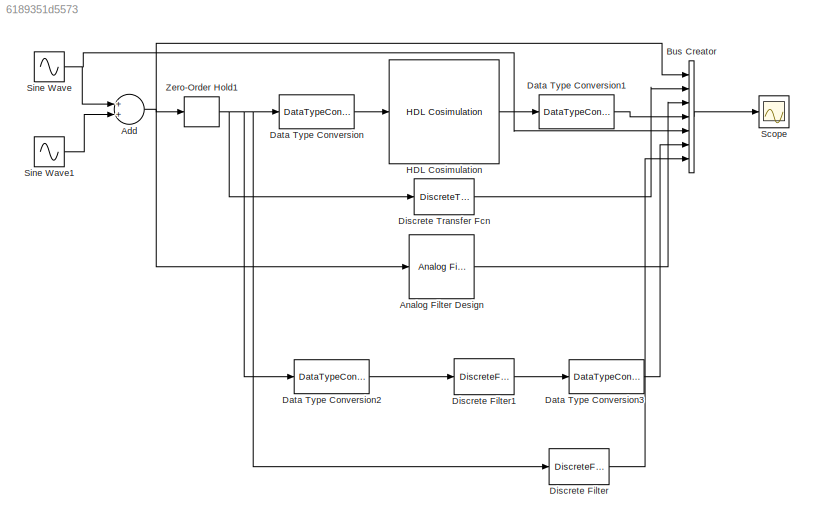
MODEL slx_6189351d5573
KIND model
CONFIG AbsTol = auto
CONFIG EnableMultiTasking = off
CONFIG FixedStep = auto
CONFIG MaxStep = auto
CONFIG MinStep = auto
CONFIG RelTol = 1e-3
CONFIG SampleTimeConstraint = Unconstrained
CONFIG Solver = VariableStepAuto
CONFIG SolverName = VariableStepAuto
CONFIG StartTime = 0.0
CONFIG StopTime = 1
BLOCK [Sum] Add
  InputSameDT = off
  OutDataTypeStr = Inherit: Inherit via internal rule
  Ports = [2, 1]
  SaturateOnIntegerOverflow = off
BLOCK [Reference] Analog Filter Design  REF=dsparch4/Analog
Filter Design
  Ports = [1, 1]
  SourceBlock = dsparch4/Analog\nFilter Design
  SourceProductBaseCode = DS
  SourceProductName = DSP System Toolbox
  SourceType = Analog Filter Design
BLOCK [BusCreator] Bus Creator
  DisplayOption = bar
  InheritFromInputs = on
  Inputs = 7
  Ports = [7, 1]
BLOCK [DataTypeConversion] Data Type Conversion
  OutDataTypeStr = fixdt(1,64,48)
  RndMeth = Floor
  SaturateOnIntegerOverflow = off
BLOCK [DataTypeConversion] Data Type Conversion1
  OutDataTypeStr = double
  RndMeth = Floor
  SaturateOnIntegerOverflow = off
BLOCK [DataTypeConversion] Data Type Conversion2
  RndMeth = Floor
  SaturateOnIntegerOverflow = off
BLOCK [DataTypeConversion] Data Type Conversion3
  OutDataTypeStr = double
  RndMeth = Floor
  SaturateOnIntegerOverflow = off
BLOCK [DiscreteFilter] Discrete Filter
  Denominator = a
  InputPortMap = u0
  Numerator = b
  Ports = [1, 1]
  SampleTime = 0.00002
BLOCK [DiscreteFilter] Discrete Filter1
  DenAccumDataTypeStr = fixdt(1,64,48)
  DenCoefDataTypeStr = fixdt(1,64,48)
  DenProductDataTypeStr = fixdt(1,64,48)
  Denominator = Afixed
  InputPortMap = u0
  NumAccumDataTypeStr = fixdt(1,64,48)
  NumCoefDataTypeStr = fixdt(1,64,48)
  NumProductDataTypeStr = fixdt(1,64,48)
  Numerator = Bfixed
  OutDataTypeStr = fixdt(1,64,48)
  Ports = [1, 1]
  SampleTime = 0.00002
  StateDataTypeStr = fixdt(1,64,48)
BLOCK [DiscreteTransferFcn] Discrete Transfer Fcn
  DenCoefDataTypeStr = int16
  Denominator = a
  InputPortMap = u0
  NumCoefDataTypeStr = int16
  Numerator = b
  Ports = [1, 1]
  SampleTime = 0.00002
BLOCK [Reference] HDL Cosimulation  REF=modelsimlib/HDL Cosimulation
  Ports = [1, 1]
  SourceBlock = modelsimlib/HDL Cosimulation
  SourceProductName = HDL Verifier
  SourceType = Simulink and ModelSim Cosimulation
BLOCK [Scope] Scope
  NumInputPorts = 1
  Ports = [1]
  ScopeSpecificationString = Simulink.scopes.TimeScopeBlockCfg('CurrentConfiguration', extmgr.ConfigurationSet(extmgr.Configuration('Core','General UI',true),extmgr.Configuration('Core','Source UI',true),extmgr.Configuration('Sources','WiredSimulink',true),extmgr.Configuration('Visuals','Time Domain',true,'SerializedDisplays',{struct('MinYLimReal','-18.72372','MaxYLimReal','18.72601','YLabelReal','','MinYLimMag','0.00000','Ma...<+1715ch>
BLOCK [Sin] Sine Wave
  Amplitude = 10
  Frequency = 12566
  Ports = [0, 1]
  SampleTime = 0
BLOCK [Sin] Sine Wave1
  Amplitude = 5
  Frequency = 157079
  Ports = [0, 1]
  SampleTime = 0
BLOCK [ZeroOrderHold] Zero-Order Hold1
  SampleTime = 0.00002
NET Add:1 -> Analog Filter Design:1, Bus Creator:1, Zero-Order Hold1:1
LINE Analog Filter Design:1 -> Bus Creator:3
LINE Bus Creator:1 -> Scope:1
LINE Data Type Conversion1:1 -> Bus Creator:4
LINE Data Type Conversion2:1 -> Discrete Filter1:1
LINE Data Type Conversion3:1 -> Bus Creator:6
LINE Data Type Conversion:1 -> HDL Cosimulation:1
LINE Discrete Filter1:1 -> Data Type Conversion3:1
LINE Discrete Filter:1 -> Bus Creator:7
LINE Discrete Transfer Fcn:1 -> Bus Creator:2
LINE HDL Cosimulation:1 -> Data Type Conversion1:1
LINE Sine Wave1:1 -> Add:2
NET Sine Wave:1 -> Add:1, Bus Creator:5
NET Zero-Order Hold1:1 -> Data Type Conversion2:1, Data Type Conversion:1, Discrete Filter:1, Discrete Transfer Fcn:1
note: NET lines group one-source signal fan-out (src -> all destinations, sorted); 1:1 wires keep LINE
